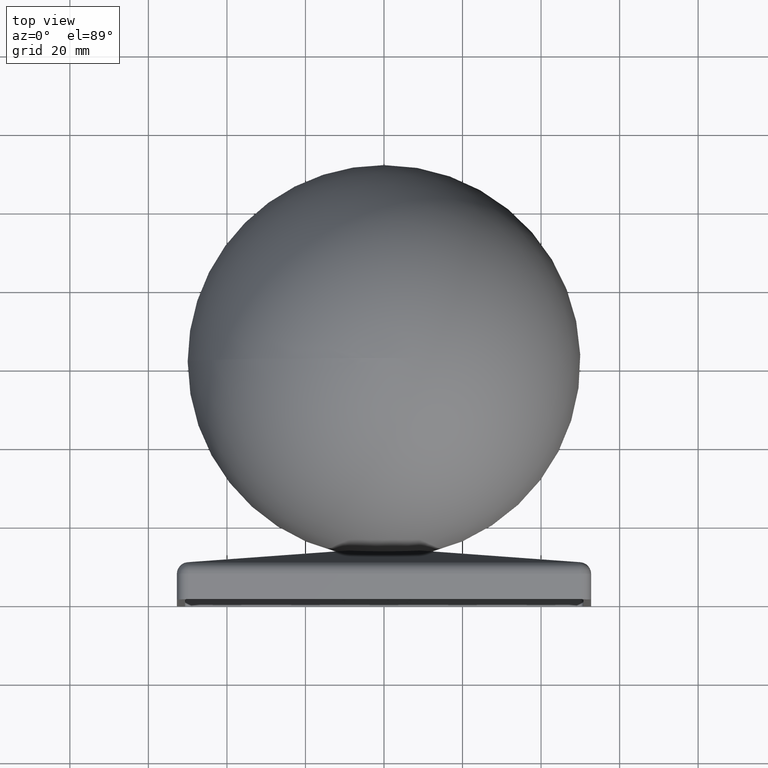
[diagram: clean part render]
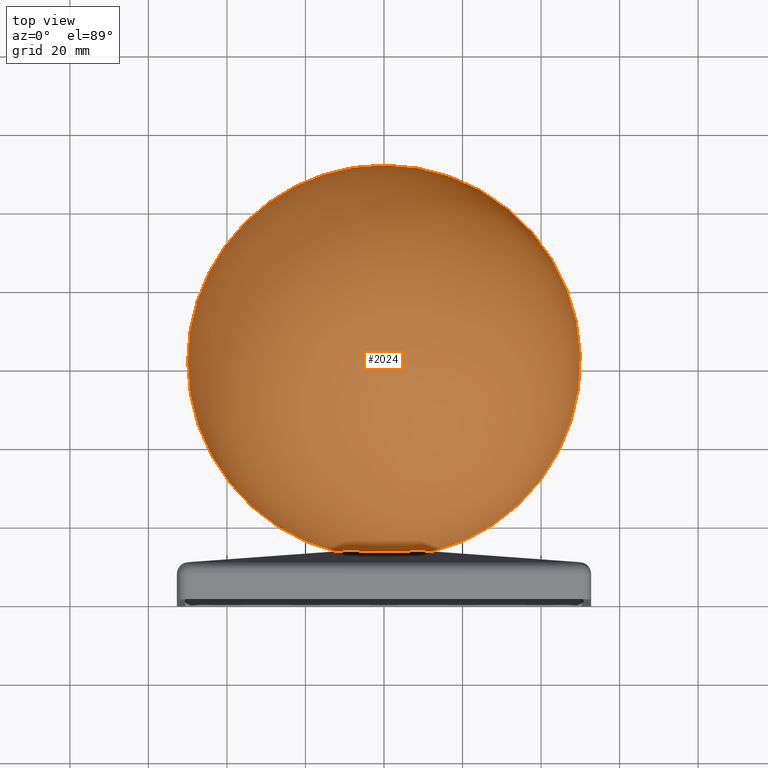
[diagram: same view with one face highlighted and labeled with its STEP entity id]
A machine part, top view. The second image highlights one B-rep face of the part: STEP entity #2024.
In plain terms, the highlighted spherical surface has radius 50 mm.
Its self-contained STEP definition (entity closure, byte-faithful):
#162 = EDGE_CURVE ( 'NONE', #7171, #3743, #14966, .T. ) ;
#851 = CIRCLE ( 'NONE', #14987, 16.22386729345960500 ) ;
#1061 = ORIENTED_EDGE ( 'NONE', *, *, #16976, .T. ) ;
#1646 = CARTESIAN_POINT ( 'NONE',  ( 0.0000000000000000000, 61.50000000000000000, 0.0000000000000000000 ) ) ;
#1818 = CARTESIAN_POINT ( 'NONE',  ( 8.947634093226003700, 13.17846864188602900, 9.217887574740135600 ) ) ;
#2024 = ADVANCED_FACE ( 'NONE', ( #6154 ), #2590, .T. ) ;
#2293 = DIRECTION ( 'NONE',  ( -0.9959341263205832000, -0.09008449383804263700, 2.664535259100376100E-015 ) ) ;
#2590 = SPHERICAL_SURFACE ( 'NONE', #4149, 50.00000000000000000 ) ;
#2742 = EDGE_CURVE ( 'NONE', #3743, #14503, #5708, .T. ) ;
#3463 = CARTESIAN_POINT ( 'NONE',  ( -9.217887574740132100, 13.17846864188603100, 8.947634093226003700 ) ) ;
#3681 = DIRECTION ( 'NONE',  ( -1.000000000000000000, 0.0000000000000000000, 0.0000000000000000000 ) ) ;
#3743 = VERTEX_POINT ( 'NONE', #5640 ) ;
#3954 = ORIENTED_EDGE ( 'NONE', *, *, #4722, .F. ) ;
#4017 = VERTEX_POINT ( 'NONE', #11973 ) ;
#4149 = AXIS2_PLACEMENT_3D ( 'NONE', #1646, #13665, #15078 ) ;
#4316 = CARTESIAN_POINT ( 'NONE',  ( 9.147348226988386300, 13.18484908540128200, 9.054761471099588700 ) ) ;
#4596 = VERTEX_POINT ( 'NONE', #3463 ) ;
#4722 = EDGE_CURVE ( 'NONE', #4596, #4017, #851, .T. ) ;
#4773 = CARTESIAN_POINT ( 'NONE',  ( -8.947634093226357200, 13.17846864188601200, 9.217887574740506900 ) ) ;
#5598 = EDGE_LOOP ( 'NONE', ( #16607, #9174, #6415, #3954, #6739, #1061, #15367 ) ) ;
#5640 = CARTESIAN_POINT ( 'NONE',  ( 11.89738638585294900, 12.93610191525271200, 1.457009615565411000E-015 ) ) ;
#5708 = CIRCLE ( 'NONE', #9606, 50.00000000000000000 ) ;
#5791 = DIRECTION ( 'NONE',  ( 1.000000000000000000, 0.0000000000000000000, 1.224646799147353200E-016 ) ) ;
#5903 = CARTESIAN_POINT ( 'NONE',  ( 0.0000000000000000000, 61.50000000000000000, 0.0000000000000000000 ) ) ;
#6123 = CARTESIAN_POINT ( 'NONE',  ( -9.054761471099588700, 13.18484908540128200, 9.147348226988370400 ) ) ;
#6154 = FACE_OUTER_BOUND ( 'NONE', #5598, .T. ) ;
#6415 = ORIENTED_EDGE ( 'NONE', *, *, #11569, .F. ) ;
#6739 = ORIENTED_EDGE ( 'NONE', *, *, #14262, .F. ) ;
#6773 = VERTEX_POINT ( 'NONE', #13373 ) ;
#7171 = VERTEX_POINT ( 'NONE', #13847 ) ;
#7678 = VERTEX_POINT ( 'NONE', #4773 ) ;
#7954 = AXIS2_PLACEMENT_3D ( 'NONE', #14398, #17212, #11648 ) ;
#8434 = CARTESIAN_POINT ( 'NONE',  ( 9.054985563013938000, 13.18486243218372200, 9.147200670893404600 ) ) ;
#8832 = DIRECTION ( 'NONE',  ( 0.9959341263205832000, -0.09008449383804263700, 0.0000000000000000000 ) ) ;
#8958 = CARTESIAN_POINT ( 'NONE',  ( -9.217887574740132100, 13.17846864188603100, 8.947634093226003700 ) ) ;
#9174 = ORIENTED_EDGE ( 'NONE', *, *, #2742, .T. ) ;
#9606 = AXIS2_PLACEMENT_3D ( 'NONE', #5903, #13772, #5791 ) ;
#10096 = DIRECTION ( 'NONE',  ( -0.0000000000000000000, 0.0000000000000000000, -1.000000000000000000 ) ) ;
#10870 = CIRCLE ( 'NONE', #7954, 16.22386729345960200 ) ;
#11569 = EDGE_CURVE ( 'NONE', #4017, #14503, #13905, .T. ) ;
#11648 = DIRECTION ( 'NONE',  ( 1.776356839400250900E-015, 0.09008449383804255400, -0.9959341263205832000 ) ) ;
#11862 = EDGE_CURVE ( 'NONE', #7171, #6773, #16836, .T. ) ;
#11864 = B_SPLINE_CURVE_WITH_KNOTS ( 'NONE', 3,
 ( #14186, #6123, #14308, #8958 ),
 .UNSPECIFIED., .F., .F.,
 ( 4, 4 ),
 ( 0.01080237408506791800, 0.01118238461084056900 ),
 .UNSPECIFIED. ) ;
#11973 = CARTESIAN_POINT ( 'NONE',  ( -11.89738638585294900, 12.93610191525271200, 0.0000000000000000000 ) ) ;
#12081 = AXIS2_PLACEMENT_3D ( 'NONE', #17063, #12985, #8832 ) ;
#12900 = CARTESIAN_POINT ( 'NONE',  ( 0.0000000000000000000, 61.50000000000000000, 0.0000000000000000000 ) ) ;
#12965 = DIRECTION ( 'NONE',  ( 0.09008449383804260900, -0.9959341263205833100, -0.0000000000000000000 ) ) ;
#12985 = DIRECTION ( 'NONE',  ( 0.09008449383804260900, 0.9959341263205833100, 0.0000000000000000000 ) ) ;
#13373 = CARTESIAN_POINT ( 'NONE',  ( 8.947634093226003700, 13.17846864188602900, 9.217887574740135600 ) ) ;
#13665 = DIRECTION ( 'NONE',  ( 0.0000000000000000000, 0.0000000000000000000, 1.000000000000000000 ) ) ;
#13772 = DIRECTION ( 'NONE',  ( -1.224646799147353200E-016, 6.520694707225454100E-034, 1.000000000000000000 ) ) ;
#13834 = AXIS2_PLACEMENT_3D ( 'NONE', #12900, #10096, #3681 ) ;
#13847 = CARTESIAN_POINT ( 'NONE',  ( 9.217887574740128500, 13.17846864188603300, 8.947634093226014300 ) ) ;
#13905 = CIRCLE ( 'NONE', #13834, 50.00000000000000000 ) ;
#14186 = CARTESIAN_POINT ( 'NONE',  ( -8.947634093226357200, 13.17846864188601200, 9.217887574740506900 ) ) ;
#14262 = EDGE_CURVE ( 'NONE', #7678, #4596, #11864, .T. ) ;
#14308 = CARTESIAN_POINT ( 'NONE',  ( -9.147200670893409900, 13.18486243218372200, 9.054985563013934400 ) ) ;
#14398 = CARTESIAN_POINT ( 'NONE',  ( -9.460247502257225600E-016, 14.39762078847959400, -4.260516712599830700 ) ) ;
#14503 = VERTEX_POINT ( 'NONE', #16658 ) ;
#14966 = CIRCLE ( 'NONE', #12081, 16.22386729345960500 ) ;
#14987 = AXIS2_PLACEMENT_3D ( 'NONE', #17099, #12965, #2293 ) ;
#15078 = DIRECTION ( 'NONE',  ( -1.000000000000000000, 0.0000000000000000000, 0.0000000000000000000 ) ) ;
#15367 = ORIENTED_EDGE ( 'NONE', *, *, #11862, .F. ) ;
#16496 = CARTESIAN_POINT ( 'NONE',  ( 9.217887574740128500, 13.17846864188603300, 8.947634093226014300 ) ) ;
#16607 = ORIENTED_EDGE ( 'NONE', *, *, #162, .T. ) ;
#16658 = CARTESIAN_POINT ( 'NONE',  ( -2.795389432836350500E-015, 111.5000000000000000, 0.0000000000000000000 ) ) ;
#16836 = B_SPLINE_CURVE_WITH_KNOTS ( 'NONE', 3,
 ( #16496, #4316, #8434, #1818 ),
 .UNSPECIFIED., .F., .F.,
 ( 4, 4 ),
 ( 0.01080237408506792100, 0.01118238461084059500 ),
 .UNSPECIFIED. ) ;
#16976 = EDGE_CURVE ( 'NONE', #7678, #6773, #10870, .T. ) ;
#17063 = CARTESIAN_POINT ( 'NONE',  ( -4.260516712599830700, 14.39762078847959400, 0.0000000000000000000 ) ) ;
#17099 = CARTESIAN_POINT ( 'NONE',  ( 4.260516712599830700, 14.39762078847959400, 0.0000000000000000000 ) ) ;
#17212 = DIRECTION ( 'NONE',  ( 2.000277584413958800E-017, 0.9959341263205833100, 0.09008449383804260900 ) ) ;